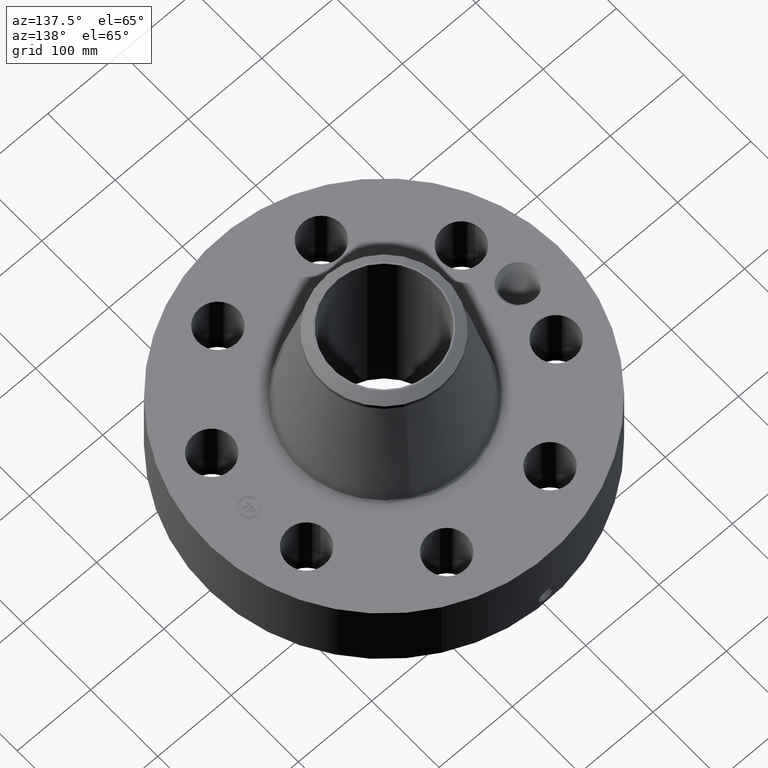
[diagram: clean part render]
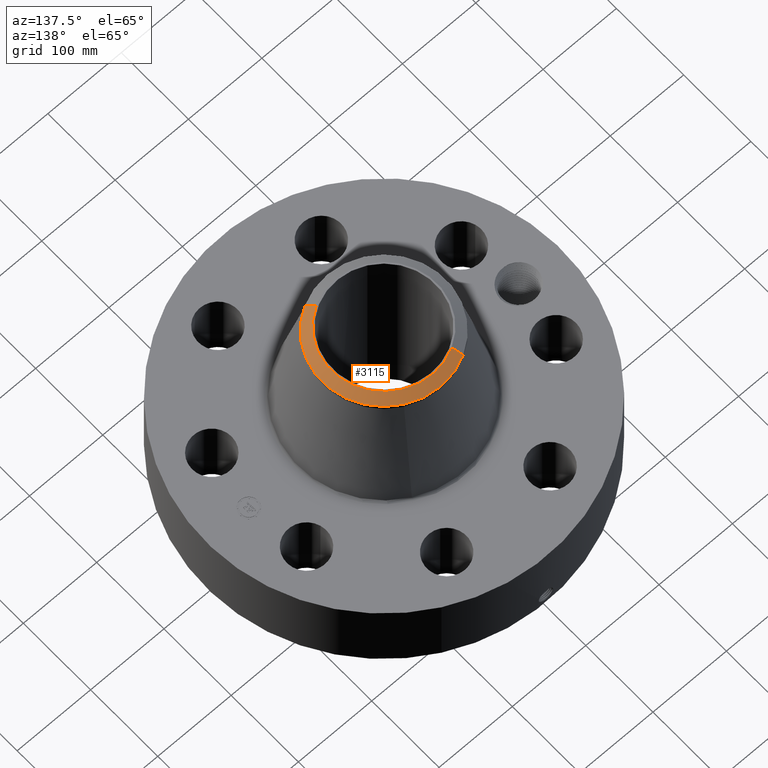
[diagram: same view with one face highlighted and labeled with its STEP entity id]
A machine part, auxiliary view. The second image highlights one B-rep face of the part: STEP entity #3115.
In plain terms, the highlighted conical surface has half-angle 52.5 deg.
Its self-contained STEP definition (entity closure, byte-faithful):
#2212=AXIS2_PLACEMENT_3D('Circle Axis2P3D',#2210,#2211,$) ;
#3060=AXIS2_PLACEMENT_3D('Cone Axis2P3D',#3057,#3058,#3059) ;
#3098=AXIS2_PLACEMENT_3D('Circle Axis2P3D',#3096,#3097,$) ;
#3105=AXIS2_PLACEMENT_3D('Circle Axis2P3D',#3103,#3104,$) ;
#2210=CARTESIAN_POINT('Axis2P3D Location',(0.,0.,11.)) ;
#2214=CARTESIAN_POINT('Vertex',(1.35640998635,-2.48289182561,11.)) ;
#2216=CARTESIAN_POINT('Vertex',(-1.35640998635,2.48289182561,11.)) ;
#3057=CARTESIAN_POINT('Axis2P3D Location',(0.,0.,11.)) ;
#3062=CARTESIAN_POINT('Line Origine',(1.47285282341,-2.69603900915,10.8136316816)) ;
#3066=CARTESIAN_POINT('Vertex',(1.58929566048,-2.90918619268,10.6272633632)) ;
#3069=CARTESIAN_POINT('Line Origine',(-1.47285282341,2.69603900915,10.8136316816)) ;
#3073=CARTESIAN_POINT('Vertex',(-1.58929566048,2.90918619268,10.6272633632)) ;
#3096=CARTESIAN_POINT('Axis2P3D Location',(0.,0.,10.6272633632)) ;
#3100=CARTESIAN_POINT('Vertex',(1.58929566048,2.90918619268,10.6272633632)) ;
#3103=CARTESIAN_POINT('Axis2P3D Location',(0.,0.,10.6272633632)) ;
#2211=DIRECTION('Axis2P3D Direction',(0.,0.,-0.0393700787402)) ;
#3058=DIRECTION('Axis2P3D Direction',(-0.,-0.,-0.0393700787402)) ;
#3059=DIRECTION('Axis2P3D XDirection',(-0.0188750212049,0.0345504945626,0.)) ;
#3063=DIRECTION('Vector Direction',(0.014974561121,-0.02741075027,-0.023966985394)) ;
#3070=DIRECTION('Vector Direction',(-0.014974561121,0.02741075027,-0.023966985394)) ;
#3097=DIRECTION('Axis2P3D Direction',(0.,0.,-0.0393700787402)) ;
#3104=DIRECTION('Axis2P3D Direction',(0.,0.,-0.0393700787402)) ;
#3064=VECTOR('Line Direction',#3063,0.0393700787402) ;
#3071=VECTOR('Line Direction',#3070,0.0393700787402) ;
#3109=ORIENTED_EDGE('',*,*,#3075,.F.) ;
#3110=ORIENTED_EDGE('',*,*,#2218,.F.) ;
#3111=ORIENTED_EDGE('',*,*,#3068,.T.) ;
#3112=ORIENTED_EDGE('',*,*,#3102,.T.) ;
#3113=ORIENTED_EDGE('',*,*,#3107,.F.) ;
#3115=ADVANCED_FACE('PartBody',(#3114),#3061,.T.) ;
#2213=CIRCLE('generated circle',#2212,2.82924015749) ;
#3099=CIRCLE('generated circle',#3098,3.31500000001) ;
#3106=CIRCLE('generated circle',#3105,3.31500000001) ;
#3061=CONICAL_SURFACE('Cone',#3060,2.82924015749,0.916297857297) ;
#2218=EDGE_CURVE('',#2215,#2217,#2213,.F.) ;
#3068=EDGE_CURVE('',#2215,#3067,#3065,.T.) ;
#3075=EDGE_CURVE('',#2217,#3074,#3072,.T.) ;
#3102=EDGE_CURVE('',#3067,#3101,#3099,.F.) ;
#3107=EDGE_CURVE('',#3074,#3101,#3106,.T.) ;
#3108=EDGE_LOOP('',(#3109,#3110,#3111,#3112,#3113)) ;
#3114=FACE_OUTER_BOUND('',#3108,.T.) ;
#3065=LINE('Line',#3062,#3064) ;
#3072=LINE('Line',#3069,#3071) ;
#2215=VERTEX_POINT('',#2214) ;
#2217=VERTEX_POINT('',#2216) ;
#3067=VERTEX_POINT('',#3066) ;
#3074=VERTEX_POINT('',#3073) ;
#3101=VERTEX_POINT('',#3100) ;